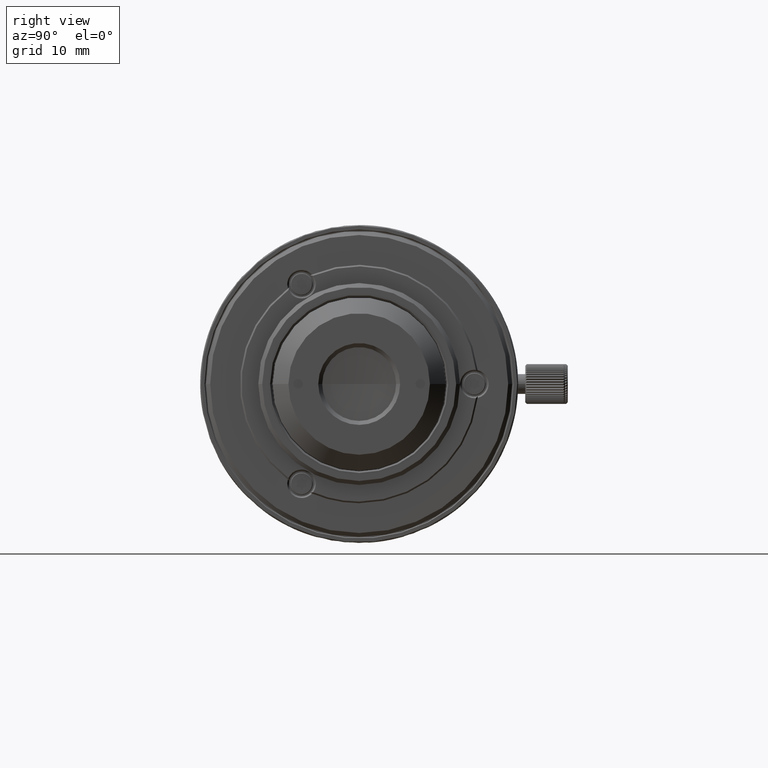
[diagram: clean part render]
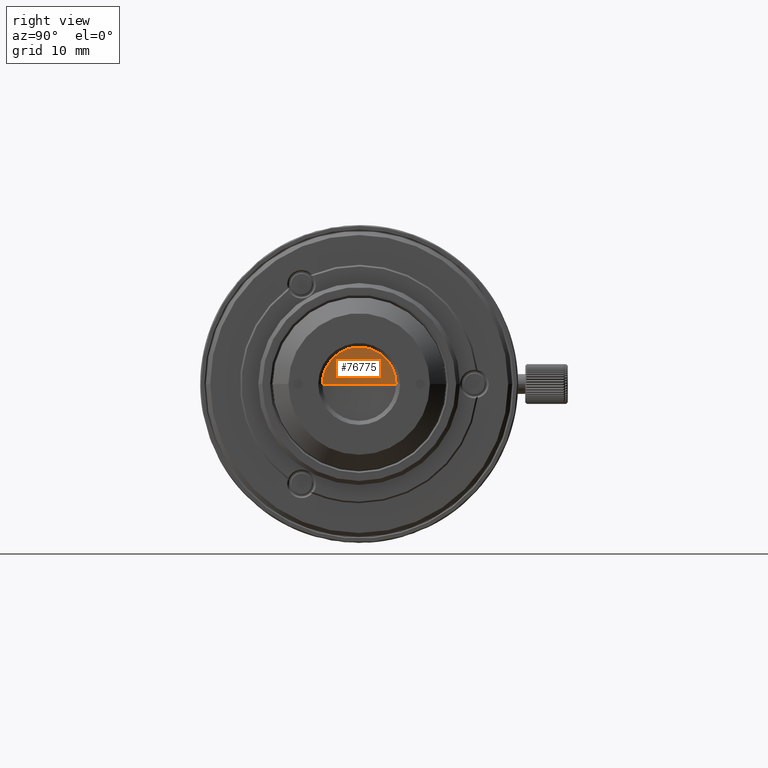
[diagram: same view with one face highlighted and labeled with its STEP entity id]
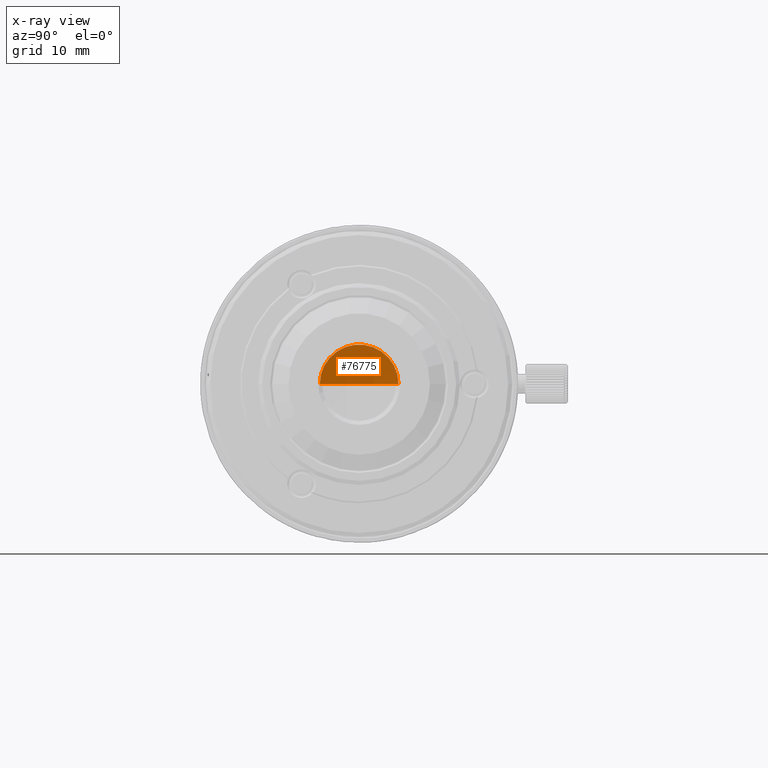
[diagram: x-ray of the same camera — body ghosted, the highlighted face saturated]
A machine part, right view. The second image highlights one B-rep face of the part: STEP entity #76775.
The next image is the same camera in x-ray: the body ghosted, the highlighted face saturated — about 0% of this face is hidden behind the body in this view.
In plain terms, the highlighted spherical surface has radius 42.46 mm.
Its self-contained STEP definition (entity closure, byte-faithful):
#1043 = AXIS2_PLACEMENT_3D ( 'NONE', #108166, #57373, #92526 ) ;
#6767 = DIRECTION ( 'NONE',  ( -1.000000000000000000, 0.000000000000000000, 0.000000000000000000 ) ) ;
#14420 = FACE_OUTER_BOUND ( 'NONE', #99755, .T. ) ;
#18329 = DIRECTION ( 'NONE',  ( 0.000000000000000000, 1.000000000000000000, 0.000000000000000000 ) ) ;
#20817 = VERTEX_POINT ( 'NONE', #71560 ) ;
#21563 = AXIS2_PLACEMENT_3D ( 'NONE', #71233, #96927, #18329 ) ;
#23483 = CARTESIAN_POINT ( 'NONE',  ( 46.04332149999999757, 0.000000000000000000, 0.000000000000000000 ) ) ;
#26898 = CIRCLE ( 'NONE', #21563, 4.954058941917999448 ) ;
#44421 = VERTEX_POINT ( 'NONE', #105032 ) ;
#50399 = EDGE_CURVE ( 'NONE', #20817, #44421, #65112, .T. ) ;
#57373 = DIRECTION ( 'NONE',  ( 0.000000000000000000, 0.000000000000000000, -1.000000000000000000 ) ) ;
#65112 = CIRCLE ( 'NONE', #79389, 42.46000000000000085 ) ;
#71233 = CARTESIAN_POINT ( 'NONE',  ( 3.873321499999999862, 0.000000000000000000, 0.000000000000000000 ) ) ;
#71560 = CARTESIAN_POINT ( 'NONE',  ( 3.873321499999999862, 4.954058941917999448, 0.000000000000000000 ) ) ;
#76775 = ADVANCED_FACE ( 'NONE', ( #14420 ), #82511, .F. ) ;
#79389 = AXIS2_PLACEMENT_3D ( 'NONE', #23483, #101040, #6767 ) ;
#81060 = ORIENTED_EDGE ( 'NONE', *, *, #98492, .T. ) ;
#82511 = SPHERICAL_SURFACE ( 'NONE', #1043, 42.46000000000000085 ) ;
#92526 = DIRECTION ( 'NONE',  ( 0.000000000000000000, 1.000000000000000000, 0.000000000000000000 ) ) ;
#96927 = DIRECTION ( 'NONE',  ( 1.000000000000000000, 0.000000000000000000, 0.000000000000000000 ) ) ;
#98492 = EDGE_CURVE ( 'NONE', #20817, #44421, #26898, .T. ) ;
#99755 = EDGE_LOOP ( 'NONE', ( #81060, #105794 ) ) ;
#101040 = DIRECTION ( 'NONE',  ( 0.000000000000000000, 0.000000000000000000, 1.000000000000000000 ) ) ;
#105032 = CARTESIAN_POINT ( 'NONE',  ( 3.873321499999999862, -4.954058941917999448, 0.000000000000000000 ) ) ;
#105794 = ORIENTED_EDGE ( 'NONE', *, *, #50399, .F. ) ;
#108166 = CARTESIAN_POINT ( 'NONE',  ( 46.04332149999999757, 0.000000000000000000, 0.000000000000000000 ) ) ;